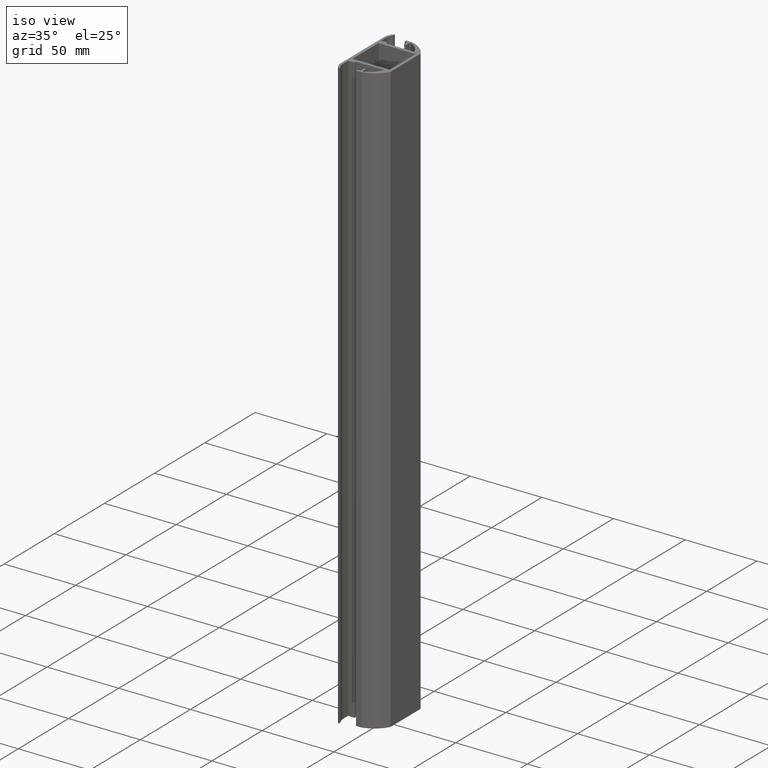
[diagram: clean part render]
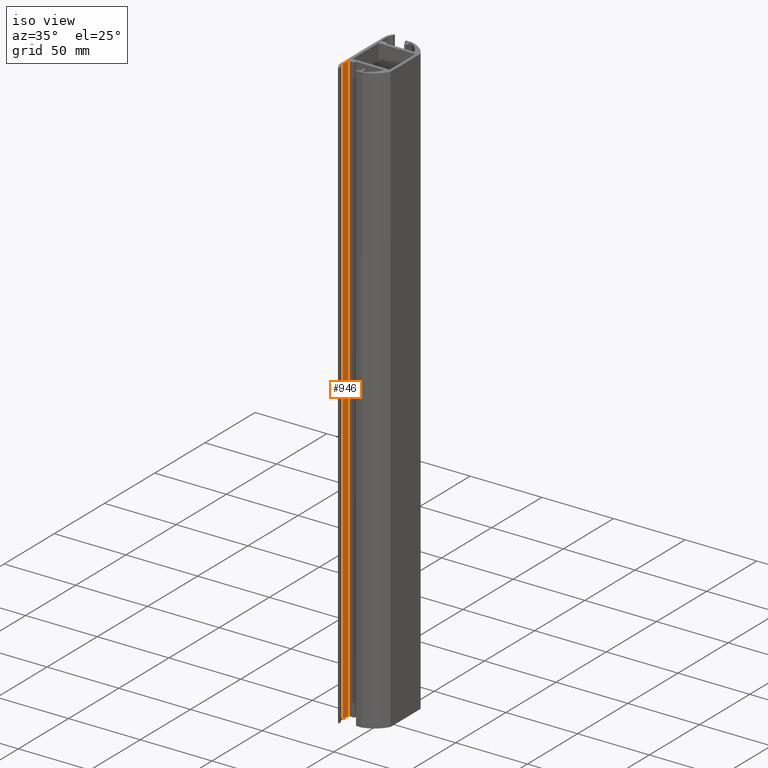
[diagram: same view with one face highlighted and labeled with its STEP entity id]
A machine part, iso view. The second image highlights one B-rep face of the part: STEP entity #946.
In plain terms, the highlighted planar face has unit normal (1, 0, 0).
Its self-contained STEP definition (entity closure, byte-faithful):
#33=PLANE('',#1027);
#76=FACE_OUTER_BOUND('',#124,.T.);
#124=EDGE_LOOP('',(#723,#724,#725,#726));
#207=LINE('',#1452,#325);
#208=LINE('',#1455,#326);
#209=LINE('',#1457,#327);
#210=LINE('',#1458,#328);
#325=VECTOR('',#1182,10.);
#326=VECTOR('',#1185,10.);
#327=VECTOR('',#1186,10.);
#328=VECTOR('',#1187,10.);
#453=VERTEX_POINT('',#1448);
#454=VERTEX_POINT('',#1450);
#455=VERTEX_POINT('',#1454);
#456=VERTEX_POINT('',#1456);
#565=EDGE_CURVE('',#454,#453,#207,.T.);
#566=EDGE_CURVE('',#453,#455,#208,.T.);
#567=EDGE_CURVE('',#456,#454,#209,.T.);
#568=EDGE_CURVE('',#456,#455,#210,.T.);
#723=ORIENTED_EDGE('',*,*,#566,.F.);
#724=ORIENTED_EDGE('',*,*,#565,.F.);
#725=ORIENTED_EDGE('',*,*,#567,.F.);
#726=ORIENTED_EDGE('',*,*,#568,.T.);
#946=ADVANCED_FACE('',(#76),#33,.T.);
#1027=AXIS2_PLACEMENT_3D('',#1453,#1183,#1184);
#1182=DIRECTION('',(0.,0.,1.));
#1183=DIRECTION('center_axis',(1.,0.,0.));
#1184=DIRECTION('ref_axis',(0.,1.,0.));
#1185=DIRECTION('',(0.,1.,0.));
#1186=DIRECTION('',(0.,-1.,0.));
#1187=DIRECTION('',(0.,0.,1.));
#1448=CARTESIAN_POINT('',(-13.4999999971506,-21.5000000006465,413.));
#1450=CARTESIAN_POINT('',(-13.4999999971506,-21.5000000006465,0.));
#1452=CARTESIAN_POINT('',(-13.4999999971506,-21.5000000006465,0.));
#1453=CARTESIAN_POINT('Origin',(-13.4999999971506,-21.5000000006465,0.));
#1454=CARTESIAN_POINT('',(-13.4999999971506,-16.5000000010958,413.));
#1455=CARTESIAN_POINT('',(-13.4999999971506,-10.7500000003232,413.));
#1456=CARTESIAN_POINT('',(-13.4999999971506,-16.5000000010958,0.));
#1457=CARTESIAN_POINT('',(-13.4999999971506,-10.7500000003232,0.));
#1458=CARTESIAN_POINT('',(-13.4999999971506,-16.5000000010958,0.));